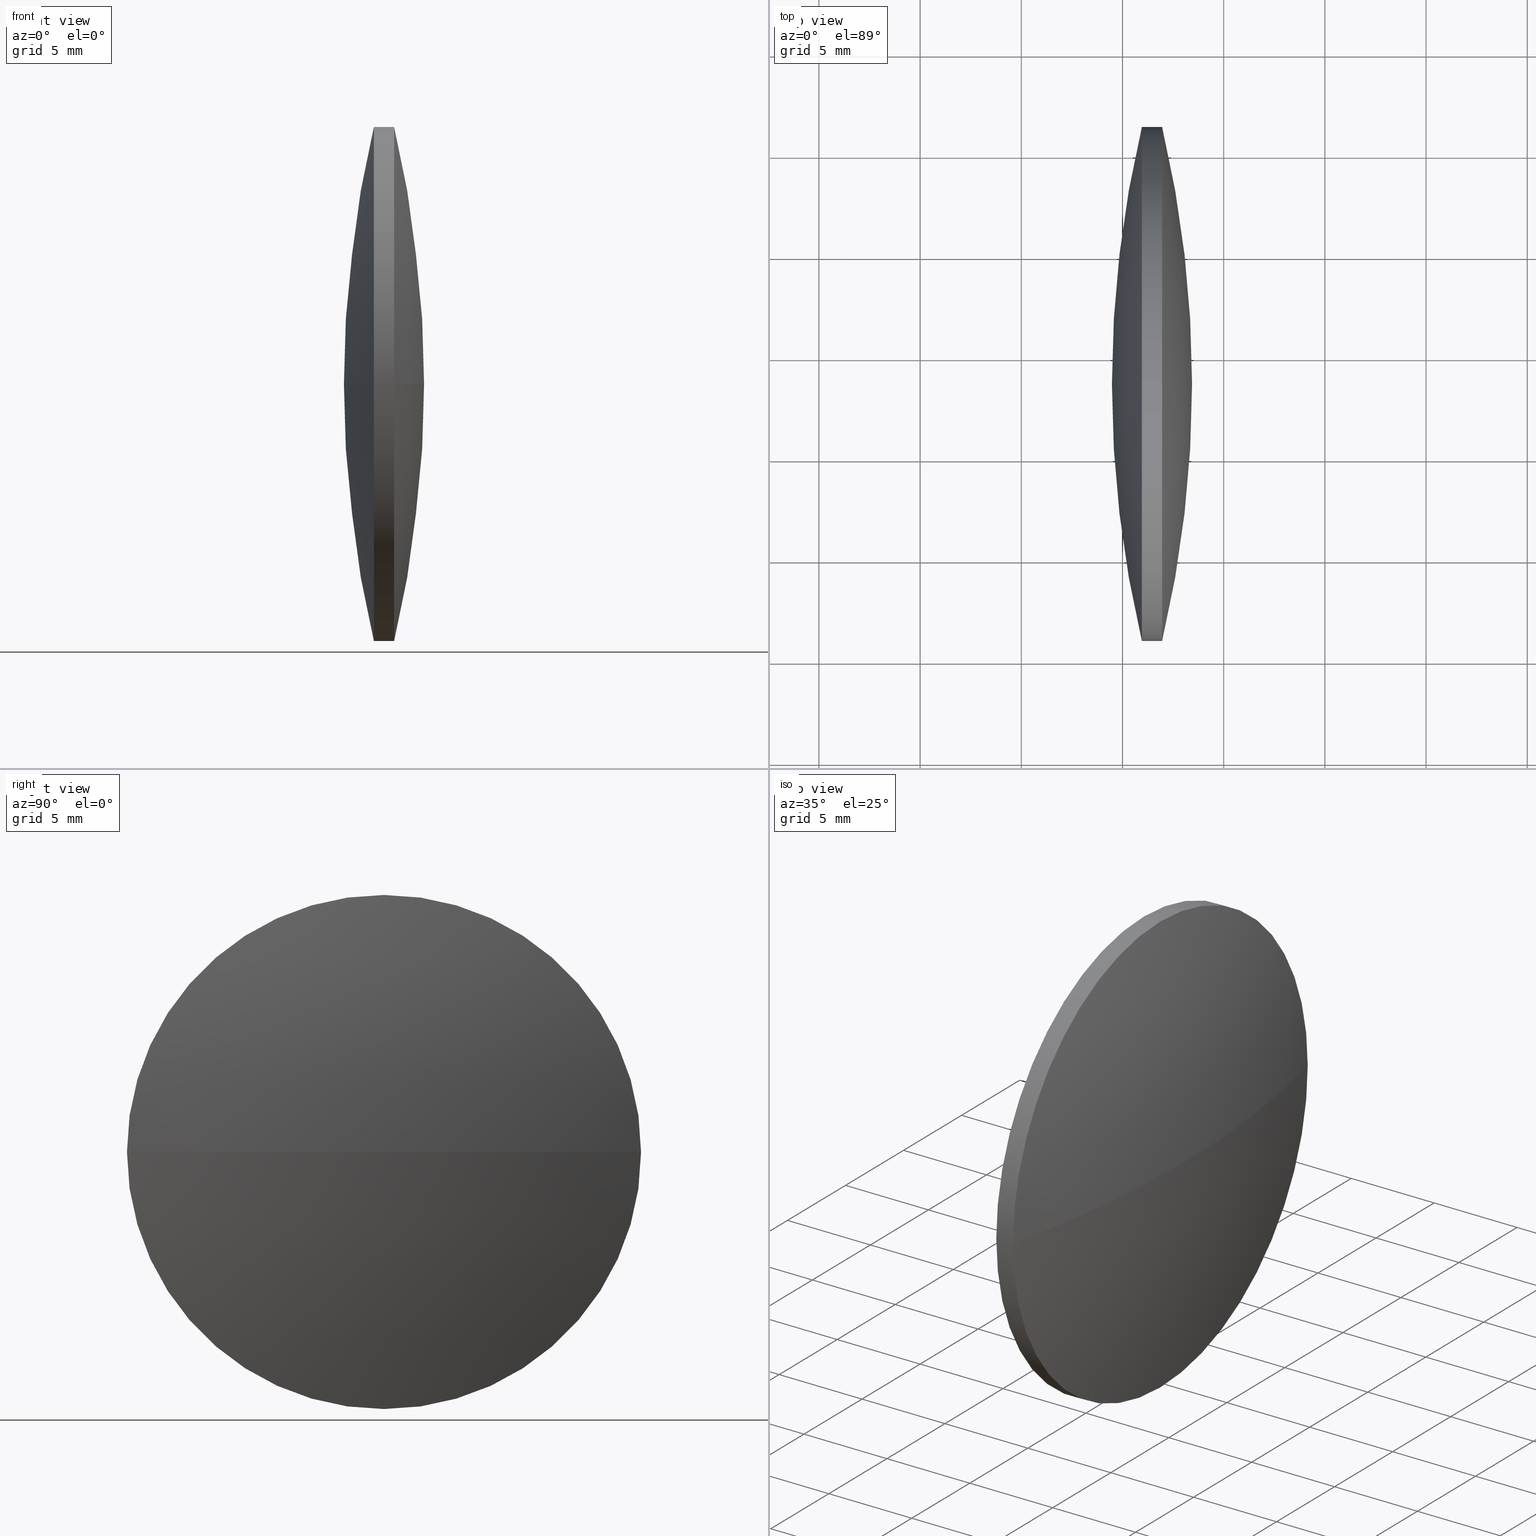
[diagram: canonical four-view strip — front | top / right | iso, engineering-drawing reading convention]
A machine part, canonical four-view strip (front | top / right | iso — engineering-drawing reading convention). The complete STEP part file that produces these views, byte-faithful:
ISO-10303-21;
HEADER;
FILE_DESCRIPTION (( 'STEP AP203' ),
    '1' );
FILE_NAME ('110099.STEP',
    '2019-07-08T06:36:03',
    ( '' ),
    ( '' ),
    'SwSTEP 2.0',
    'SolidWorks 2016',
    '' );
FILE_SCHEMA (( 'CONFIG_CONTROL_DESIGN' ));
ENDSEC;

DATA;
#1 = LOCAL_TIME ( 14, 36, 3.000000000000000000, #82 ) ;
#2 = DIRECTION ( 'NONE',  ( 1.000000000000000000, 0.0000000000000000000, 0.0000000000000000000 ) ) ;
#3 = DIRECTION ( 'NONE',  ( 0.0000000000000000000, 0.0000000000000000000, 1.000000000000000000 ) ) ;
#4 = ORIENTED_EDGE ( 'NONE', *, *, #168, .F. ) ;
#5 = SECURITY_CLASSIFICATION ( '', '', #234 ) ;
#6 = PERSON_AND_ORGANIZATION ( #338, #220 ) ;
#7 = DIRECTION ( 'NONE',  ( 0.0000000000000000000, 1.224646799147353200E-016, -1.000000000000000000 ) ) ;
#8 = AXIS2_PLACEMENT_3D ( 'NONE', #105, #268, #133 ) ;
#9 = DIRECTION ( 'NONE',  ( 0.0000000000000000000, 0.0000000000000000000, 1.000000000000000000 ) ) ;
#10 = CARTESIAN_POINT ( 'NONE',  ( 139.7092804807324700, 48.61611302318473100, 0.0000000000000000000 ) ) ;
#11 = CC_DESIGN_PERSON_AND_ORGANIZATION_ASSIGNMENT ( #253, #201, ( #158 ) ) ;
#12 = APPLICATION_CONTEXT ( 'configuration controlled 3d designs of mechanical parts and assemblies' ) ;
#13 =( NAMED_UNIT ( * ) SI_UNIT ( $, .STERADIAN. ) SOLID_ANGLE_UNIT ( ) );
#14 = CIRCLE ( 'NONE', #263, 55.23105299178421000 ) ;
#15 = PERSON_AND_ORGANIZATION ( #338, #220 ) ;
#16 = CARTESIAN_POINT ( 'NONE',  ( 79.30540135083715800, 48.61611302318478100, 12.69999999999999600 ) ) ;
#17 = AXIS2_PLACEMENT_3D ( 'NONE', #175, #64, #303 ) ;
#18 = AXIS2_PLACEMENT_3D ( 'NONE', #24, #50, #141 ) ;
#19 = CALENDAR_DATE ( 2019, 8, 7 ) ;
#20 = ORIENTED_EDGE ( 'NONE', *, *, #265, .F. ) ;
#21 = PERSON_AND_ORGANIZATION ( #338, #220 ) ;
#22 = CC_DESIGN_APPROVAL ( #58, ( #156 ) ) ;
#23 = AXIS2_PLACEMENT_3D ( 'NONE', #29, #28, #314 ) ;
#24 = CARTESIAN_POINT ( 'NONE',  ( 79.30540135083715800, 48.61611302318478100, 0.0000000000000000000 ) ) ;
#25 = CALENDAR_DATE ( 2019, 8, 7 ) ;
#26 = PERSON_AND_ORGANIZATION ( #338, #220 ) ;
#27 = AXIS2_PLACEMENT_3D ( 'NONE', #192, #32, #114 ) ;
#28 = DIRECTION ( 'NONE',  ( 0.0000000000000000000, 0.0000000000000000000, 1.000000000000000000 ) ) ;
#29 = CARTESIAN_POINT ( 'NONE',  ( 33.20710706859297500, 48.61611302318480200, 0.0000000000000000000 ) ) ;
#30 = EDGE_LOOP ( 'NONE', ( #129, #275, #4, #110 ) ) ;
#31 = DIRECTION ( 'NONE',  ( -0.0000000000000000000, 0.0000000000000000000, -1.000000000000000000 ) ) ;
#32 = DIRECTION ( 'NONE',  ( -1.000000000000000000, -0.0000000000000000000, -0.0000000000000000000 ) ) ;
#33 = CARTESIAN_POINT ( 'NONE',  ( 139.7092804807324700, 48.61611302318473100, 0.0000000000000000000 ) ) ;
#34 = ORIENTED_EDGE ( 'NONE', *, *, #168, .T. ) ;
#35 = APPROVAL ( #204, 'δָ��' ) ;
#36 = LOCAL_TIME ( 14, 36, 3.000000000000000000, #305 ) ;
#37 = AXIS2_PLACEMENT_3D ( 'NONE', #251, #89, #3 ) ;
#38 = APPLICATION_CONTEXT ( 'configuration controlled 3d designs of mechanical parts and assemblies' ) ;
#39 = UNCERTAINTY_MEASURE_WITH_UNIT (LENGTH_MEASURE( 1.000000000000000100E-005 ), #67, 'distance_accuracy_value', 'NONE');
#40 = CARTESIAN_POINT ( 'NONE',  ( 85.95819477466253000, 48.61611302318478100, 0.0000000000000000000 ) ) ;
#41 = CIRCLE ( 'NONE', #92, 55.23105299178420300 ) ;
#42 = FACE_OUTER_BOUND ( 'NONE', #315, .T. ) ;
#43 = APPLICATION_PROTOCOL_DEFINITION ( 'international standard', 'config_control_design', 1994, #230 ) ;
#44 = CC_DESIGN_PERSON_AND_ORGANIZATION_ASSIGNMENT ( #51, #256, ( #156 ) ) ;
#45 = ORIENTED_EDGE ( 'NONE', *, *, #298, .F. ) ;
#46 = ADVANCED_FACE ( 'NONE', ( #308 ), #244, .T. ) ;
#47 = PRODUCT ( '110099', '110099', '', ( #93 ) ) ;
#48 = VERTEX_POINT ( 'NONE', #247 ) ;
#49 = ORIENTED_EDGE ( 'NONE', *, *, #269, .F. ) ;
#50 = DIRECTION ( 'NONE',  ( -1.000000000000000000, -0.0000000000000000000, -0.0000000000000000000 ) ) ;
#51 = PERSON_AND_ORGANIZATION ( #338, #220 ) ;
#52 = CC_DESIGN_PERSON_AND_ORGANIZATION_ASSIGNMENT ( #21, #122, ( #291 ) ) ;
#53 = VERTEX_POINT ( 'NONE', #215 ) ;
#54 = CALENDAR_DATE ( 2019, 8, 7 ) ;
#55 = DATE_AND_TIME ( #135, #209 ) ;
#56 = CARTESIAN_POINT ( 'NONE',  ( 33.20710706859297500, 48.61611302318480200, 0.0000000000000000000 ) ) ;
#57 = DIRECTION ( 'NONE',  ( 0.0000000000000000000, 0.0000000000000000000, 1.000000000000000000 ) ) ;
#58 = APPROVAL ( #229, 'δָ��' ) ;
#59 = VERTEX_POINT ( 'NONE', #160 ) ;
#60 = DIRECTION ( 'NONE',  ( 0.0000000000000000000, 0.0000000000000000000, -1.000000000000000000 ) ) ;
#61 = APPROVAL_DATE_TIME ( #131, #307 ) ;
#62 = DIRECTION ( 'NONE',  ( -0.0000000000000000000, 0.0000000000000000000, 1.000000000000000000 ) ) ;
#63 = CARTESIAN_POINT ( 'NONE',  ( 84.47822748894826400, 48.61611302318473100, 0.0000000000000000000 ) ) ;
#64 = DIRECTION ( 'NONE',  ( -1.000000000000000000, -0.0000000000000000000, -0.0000000000000000000 ) ) ;
#65 = ORIENTED_EDGE ( 'NONE', *, *, #245, .T. ) ;
#66 = AXIS2_PLACEMENT_3D ( 'NONE', #296, #139, #57 ) ;
#67 =( LENGTH_UNIT ( ) NAMED_UNIT ( * ) SI_UNIT ( .MILLI., .METRE. ) );
#68 = EDGE_CURVE ( 'NONE', #295, #185, #208, .T. ) ;
#69 = CARTESIAN_POINT ( 'NONE',  ( 86.95819277466255000, 48.61611302318478100, -12.69999999999999600 ) ) ;
#70 = PERSON_AND_ORGANIZATION_ROLE ( 'classification_officer' ) ;
#71 = VERTEX_POINT ( 'NONE', #318 ) ;
#72 = APPROVAL_STATUS ( 'not_yet_approved' ) ;
#73 = AXIS2_PLACEMENT_3D ( 'NONE', #285, #146, #203 ) ;
#74 = AXIS2_PLACEMENT_3D ( 'NONE', #272, #190, #9 ) ;
#75 = DESIGN_CONTEXT ( 'detailed design', #38, 'design' ) ;
#76 = APPROVAL_DATE_TIME ( #121, #35 ) ;
#77 = LOCAL_TIME ( 14, 36, 3.000000000000000000, #195 ) ;
#78 = ADVANCED_FACE ( 'NONE', ( #310 ), #188, .T. ) ;
#79 = ORIENTED_EDGE ( 'NONE', *, *, #290, .F. ) ;
#80 = CC_DESIGN_APPROVAL ( #35, ( #291 ) ) ;
#81 = CIRCLE ( 'NONE', #17, 12.69999999999999600 ) ;
#82 = COORDINATED_UNIVERSAL_TIME_OFFSET ( 8, 0, .AHEAD. ) ;
#83 = CARTESIAN_POINT ( 'NONE',  ( 79.30540135083715800, 48.61611302318478100, -12.69999999999999600 ) ) ;
#84 = CIRCLE ( 'NONE', #138, 12.69999999999999600 ) ;
#85 = DIRECTION ( 'NONE',  ( -1.000000000000000000, -0.0000000000000000000, -0.0000000000000000000 ) ) ;
#86 = FACE_OUTER_BOUND ( 'NONE', #331, .T. ) ;
#87 = LOCAL_TIME ( 14, 36, 3.000000000000000000, #136 ) ;
#88 = CARTESIAN_POINT ( 'NONE',  ( 85.95819477466253000, 48.61611302318478100, 0.0000000000000000000 ) ) ;
#89 = DIRECTION ( 'NONE',  ( -1.000000000000000000, -0.0000000000000000000, -0.0000000000000000000 ) ) ;
#90 = CC_DESIGN_PERSON_AND_ORGANIZATION_ASSIGNMENT ( #311, #330, ( #291 ) ) ;
#91 = APPROVAL_ROLE ( '' ) ;
#92 = AXIS2_PLACEMENT_3D ( 'NONE', #10, #7, #117 ) ;
#93 = MECHANICAL_CONTEXT ( 'NONE', #12, 'mechanical' ) ;
#94 = APPROVAL_ROLE ( '' ) ;
#95 = ORIENTED_EDGE ( 'NONE', *, *, #290, .T. ) ;
#96 = LOCAL_TIME ( 14, 36, 3.000000000000000000, #239 ) ;
#97 = MECHANICAL_CONTEXT ( 'NONE', #230, 'mechanical' ) ;
#98 = CC_DESIGN_APPROVAL ( #167, ( #5 ) ) ;
#99 = CIRCLE ( 'NONE', #125, 55.23105299178385500 ) ;
#100 = DATE_AND_TIME ( #261, #276 ) ;
#101 = SPHERICAL_SURFACE ( 'NONE', #106, 55.23105299178421000 ) ;
#102 = VERTEX_POINT ( 'NONE', #221 ) ;
#103 = CC_DESIGN_DATE_AND_TIME_ASSIGNMENT ( #240, #148, ( #5 ) ) ;
#104 = PERSON_AND_ORGANIZATION ( #338, #220 ) ;
#105 = CARTESIAN_POINT ( 'NONE',  ( 139.7092804807324700, 48.61611302318473100, 0.0000000000000000000 ) ) ;
#106 = AXIS2_PLACEMENT_3D ( 'NONE', #33, #31, #223 ) ;
#107 = CARTESIAN_POINT ( 'NONE',  ( 33.20710706859297500, 48.61611302318480200, 0.0000000000000000000 ) ) ;
#108 = FACE_OUTER_BOUND ( 'NONE', #341, .T. ) ;
#109 = CIRCLE ( 'NONE', #37, 12.69999999999999600 ) ;
#110 = ORIENTED_EDGE ( 'NONE', *, *, #266, .F. ) ;
#111 = CARTESIAN_POINT ( 'NONE',  ( 33.20710706859297500, 48.61611302318480200, 0.0000000000000000000 ) ) ;
#112 = CALENDAR_DATE ( 2019, 8, 7 ) ;
#113 = CC_DESIGN_DATE_AND_TIME_ASSIGNMENT ( #55, #172, ( #293 ) ) ;
#114 = DIRECTION ( 'NONE',  ( 0.0000000000000000000, 0.0000000000000000000, 1.000000000000000000 ) ) ;
#115 = ORIENTED_EDGE ( 'NONE', *, *, #211, .F. ) ;
#116 = DATE_AND_TIME ( #327, #87 ) ;
#117 = DIRECTION ( 'NONE',  ( 0.0000000000000000000, 1.000000000000000000, 1.224646799147353500E-016 ) ) ;
#118 = PERSON_AND_ORGANIZATION_ROLE ( 'creator' ) ;
#119 = ORIENTED_EDGE ( 'NONE', *, *, #219, .F. ) ;
#120 = DIRECTION ( 'NONE',  ( -1.000000000000000000, -0.0000000000000000000, -0.0000000000000000000 ) ) ;
#121 = DATE_AND_TIME ( #112, #170 ) ;
#122 = PERSON_AND_ORGANIZATION_ROLE ( 'creator' ) ;
#123 = PERSON_AND_ORGANIZATION_ROLE ( 'design_owner' ) ;
#124 = ORIENTED_EDGE ( 'NONE', *, *, #189, .F. ) ;
#125 = AXIS2_PLACEMENT_3D ( 'NONE', #111, #169, #227 ) ;
#126 = ORIENTED_EDGE ( 'NONE', *, *, #269, .T. ) ;
#127 = CALENDAR_DATE ( 2019, 8, 7 ) ;
#128 = PERSON_AND_ORGANIZATION ( #338, #220 ) ;
#129 = ORIENTED_EDGE ( 'NONE', *, *, #186, .F. ) ;
#130 = CC_DESIGN_PERSON_AND_ORGANIZATION_ASSIGNMENT ( #194, #333, ( #158 ) ) ;
#131 = DATE_AND_TIME ( #54, #206 ) ;
#132 = ADVANCED_FACE ( 'NONE', ( #42 ), #340, .T. ) ;
#133 = DIRECTION ( 'NONE',  ( 0.0000000000000000000, 1.000000000000000000, 0.0000000000000000000 ) ) ;
#134 = CLOSED_SHELL ( 'NONE', ( #183, #78, #241, #46, #132, #243 ) ) ;
#135 = CALENDAR_DATE ( 2019, 8, 7 ) ;
#136 = COORDINATED_UNIVERSAL_TIME_OFFSET ( 8, 0, .AHEAD. ) ;
#137 = CARTESIAN_POINT ( 'NONE',  ( 139.7092804807324700, 48.61611302318473100, 0.0000000000000000000 ) ) ;
#138 = AXIS2_PLACEMENT_3D ( 'NONE', #88, #277, #274 ) ;
#139 = DIRECTION ( 'NONE',  ( -1.000000000000000000, -0.0000000000000000000, -0.0000000000000000000 ) ) ;
#140 = ORIENTED_EDGE ( 'NONE', *, *, #328, .F. ) ;
#141 = DIRECTION ( 'NONE',  ( 0.0000000000000000000, 0.0000000000000000000, 1.000000000000000000 ) ) ;
#142 = CC_DESIGN_APPROVAL ( #184, ( #293 ) ) ;
#143 = APPROVAL_ROLE ( '' ) ;
#144 = AXIS2_PLACEMENT_3D ( 'NONE', #56, #60, #225 ) ;
#145 = DATE_AND_TIME ( #25, #96 ) ;
#146 = DIRECTION ( 'NONE',  ( 0.0000000000000000000, 0.0000000000000000000, 1.000000000000000000 ) ) ;
#147 = APPROVAL_PERSON_ORGANIZATION ( #128, #35, #143 ) ;
#148 = DATE_TIME_ROLE ( 'classification_date' ) ;
#149 = APPLICATION_PROTOCOL_DEFINITION ( 'international standard', 'config_control_design', 1994, #12 ) ;
#150 = CIRCLE ( 'NONE', #144, 55.23105299178385500 ) ;
#151 = PERSON_AND_ORGANIZATION_ROLE ( 'classification_officer' ) ;
#152 = APPROVAL_DATE_TIME ( #164, #167 ) ;
#153 = APPROVAL_ROLE ( '' ) ;
#154 = CC_DESIGN_PERSON_AND_ORGANIZATION_ASSIGNMENT ( #104, #151, ( #5 ) ) ;
#155 = DESIGN_CONTEXT ( 'detailed design', #198, 'design' ) ;
#156 = PRODUCT_DEFINITION ( 'δ֪', '', #291, #155 ) ;
#157 = EDGE_LOOP ( 'NONE', ( #252, #264, #126, #287 ) ) ;
#158 = PRODUCT_DEFINITION_FORMATION_WITH_SPECIFIED_SOURCE ( '�κ�', '', #47, .NOT_KNOWN. ) ;
#159 = MANIFOLD_SOLID_BREP ( '��ת1', #134 ) ;
#160 = CARTESIAN_POINT ( 'NONE',  ( 85.95819477466253000, 48.61611302318478100, 12.69999999999999600 ) ) ;
#161 = CYLINDRICAL_SURFACE ( 'NONE', #181, 12.69999999999999600 ) ;
#162 = CARTESIAN_POINT ( 'NONE',  ( 85.95819477466253000, 35.91611302318475700, -1.555301434917134100E-015 ) ) ;
#163 = ORIENTED_EDGE ( 'NONE', *, *, #328, .T. ) ;
#164 = DATE_AND_TIME ( #322, #1 ) ;
#165 = DATE_AND_TIME ( #342, #77 ) ;
#166 = CARTESIAN_POINT ( 'NONE',  ( 86.95819277466255000, 48.61611302318478100, 12.69999999999999600 ) ) ;
#167 = APPROVAL ( #335, 'δָ��' ) ;
#168 = EDGE_CURVE ( 'NONE', #321, #53, #238, .T. ) ;
#169 = DIRECTION ( 'NONE',  ( 0.0000000000000000000, -1.224646799147353200E-016, 1.000000000000000000 ) ) ;
#170 = LOCAL_TIME ( 14, 36, 3.000000000000000000, #210 ) ;
#171 = DIRECTION ( 'NONE',  ( 0.0000000000000000000, 0.0000000000000000000, 1.000000000000000000 ) ) ;
#172 = DATE_TIME_ROLE ( 'creation_date' ) ;
#173 = SECURITY_CLASSIFICATION_LEVEL ( 'unclassified' ) ;
#174 = ORIENTED_EDGE ( 'NONE', *, *, #286, .F. ) ;
#175 = CARTESIAN_POINT ( 'NONE',  ( 85.95819477466253000, 48.61611302318478100, 0.0000000000000000000 ) ) ;
#176 = CC_DESIGN_SECURITY_CLASSIFICATION ( #5, ( #291 ) ) ;
#177 = APPROVAL_ROLE ( '' ) ;
#178 = ORIENTED_EDGE ( 'NONE', *, *, #266, .T. ) ;
#179 = PERSON_AND_ORGANIZATION ( #338, #220 ) ;
#180 = CC_DESIGN_APPROVAL ( #326, ( #207 ) ) ;
#181 = AXIS2_PLACEMENT_3D ( 'NONE', #254, #85, #273 ) ;
#182 = ORIENTED_EDGE ( 'NONE', *, *, #286, .T. ) ;
#183 = ADVANCED_FACE ( 'NONE', ( #302 ), #199, .T. ) ;
#184 = APPROVAL ( #72, 'δָ��' ) ;
#185 = VERTEX_POINT ( 'NONE', #196 ) ;
#186 = EDGE_CURVE ( 'NONE', #102, #71, #150, .T. ) ;
#187 = DIRECTION ( 'NONE',  ( 0.0000000000000000000, 0.0000000000000000000, 1.000000000000000000 ) ) ;
#188 = SPHERICAL_SURFACE ( 'NONE', #226, 55.23105299178385500 ) ;
#189 = EDGE_CURVE ( 'NONE', #48, #292, #14, .T. ) ;
#190 = DIRECTION ( 'NONE',  ( -1.000000000000000000, -0.0000000000000000000, -0.0000000000000000000 ) ) ;
#191 = CC_DESIGN_PERSON_AND_ORGANIZATION_ASSIGNMENT ( #6, #334, ( #47 ) ) ;
#192 = CARTESIAN_POINT ( 'NONE',  ( 86.95819277466255000, 48.61611302318478100, 0.0000000000000000000 ) ) ;
#193 = ORIENTED_EDGE ( 'NONE', *, *, #68, .F. ) ;
#194 = PERSON_AND_ORGANIZATION ( #338, #220 ) ;
#195 = COORDINATED_UNIVERSAL_TIME_OFFSET ( 8, 0, .AHEAD. ) ;
#196 = CARTESIAN_POINT ( 'NONE',  ( 85.95819477466253000, 48.61611302318478100, -12.69999999999999600 ) ) ;
#197 = CC_DESIGN_SECURITY_CLASSIFICATION ( #207, ( #158 ) ) ;
#198 = APPLICATION_CONTEXT ( 'configuration controlled 3d designs of mechanical parts and assemblies' ) ;
#199 = CYLINDRICAL_SURFACE ( 'NONE', #18, 12.69999999999999600 ) ;
#200 = VERTEX_POINT ( 'NONE', #162 ) ;
#201 = PERSON_AND_ORGANIZATION_ROLE ( 'design_supplier' ) ;
#202 = PERSON_AND_ORGANIZATION ( #338, #220 ) ;
#203 = DIRECTION ( 'NONE',  ( 1.000000000000000000, 0.0000000000000000000, 0.0000000000000000000 ) ) ;
#204 = APPROVAL_STATUS ( 'not_yet_approved' ) ;
#205 = ORIENTED_EDGE ( 'NONE', *, *, #186, .T. ) ;
#206 = LOCAL_TIME ( 14, 36, 3.000000000000000000, #316 ) ;
#207 = SECURITY_CLASSIFICATION ( '', '', #173 ) ;
#208 = LINE ( 'NONE', #83, #231 ) ;
#209 = LOCAL_TIME ( 14, 36, 3.000000000000000000, #332 ) ;
#210 = COORDINATED_UNIVERSAL_TIME_OFFSET ( 8, 0, .AHEAD. ) ;
#211 = EDGE_CURVE ( 'NONE', #200, #59, #248, .T. ) ;
#212 = CC_DESIGN_PERSON_AND_ORGANIZATION_ASSIGNMENT ( #179, #70, ( #207 ) ) ;
#213 = ORIENTED_EDGE ( 'NONE', *, *, #219, .T. ) ;
#214 = PERSON_AND_ORGANIZATION ( #338, #220 ) ;
#215 = CARTESIAN_POINT ( 'NONE',  ( 86.95819277466255000, 61.31611302318478400, 1.555301434917136300E-015 ) ) ;
#216 = CIRCLE ( 'NONE', #66, 12.69999999999999600 ) ;
#217 = PRODUCT_RELATED_PRODUCT_CATEGORY ( 'detail', '', ( #289 ) ) ;
#218 = COORDINATED_UNIVERSAL_TIME_OFFSET ( 8, 0, .AHEAD. ) ;
#219 = EDGE_CURVE ( 'NONE', #53, #295, #109, .T. ) ;
#220 = ORGANIZATION ( 'δָ��', 'δָ��', '' ) ;
#221 = CARTESIAN_POINT ( 'NONE',  ( 88.43816006037683100, 48.61611302318480200, 0.0000000000000000000 ) ) ;
#222 = CARTESIAN_POINT ( 'NONE',  ( 85.95819477466253000, 48.61611302318478100, 0.0000000000000000000 ) ) ;
#223 = DIRECTION ( 'NONE',  ( 0.0000000000000000000, 1.000000000000000000, 0.0000000000000000000 ) ) ;
#224 = DIRECTION ( 'NONE',  ( -1.000000000000000000, -0.0000000000000000000, -0.0000000000000000000 ) ) ;
#225 = DIRECTION ( 'NONE',  ( -1.000000000000000000, 0.0000000000000000000, 0.0000000000000000000 ) ) ;
#226 = AXIS2_PLACEMENT_3D ( 'NONE', #107, #187, #320 ) ;
#227 = DIRECTION ( 'NONE',  ( 0.0000000000000000000, -1.000000000000000000, -1.224646799147353000E-016 ) ) ;
#228 = APPROVAL_STATUS ( 'not_yet_approved' ) ;
#229 = APPROVAL_STATUS ( 'not_yet_approved' ) ;
#230 = APPLICATION_CONTEXT ( 'configuration controlled 3d designs of mechanical parts and assemblies' ) ;
#231 = VECTOR ( 'NONE', #345, 1000.000000000000000 ) ;
#232 = DIRECTION ( 'NONE',  ( -1.000000000000000000, -0.0000000000000000000, -0.0000000000000000000 ) ) ;
#233 = APPROVAL_PERSON_ORGANIZATION ( #15, #167, #177 ) ;
#234 = SECURITY_CLASSIFICATION_LEVEL ( 'unclassified' ) ;
#235 = PRODUCT_RELATED_PRODUCT_CATEGORY ( 'detail', '', ( #47 ) ) ;
#236 = COORDINATED_UNIVERSAL_TIME_OFFSET ( 8, 0, .AHEAD. ) ;
#237 = CIRCLE ( 'NONE', #339, 12.69999999999999600 ) ;
#238 = CIRCLE ( 'NONE', #74, 12.69999999999999600 ) ;
#239 = COORDINATED_UNIVERSAL_TIME_OFFSET ( 8, 0, .AHEAD. ) ;
#240 = DATE_AND_TIME ( #19, #36 ) ;
#241 = ADVANCED_FACE ( 'NONE', ( #86 ), #101, .T. ) ;
#242 = CC_DESIGN_PERSON_AND_ORGANIZATION_ASSIGNMENT ( #312, #123, ( #289 ) ) ;
#243 = ADVANCED_FACE ( 'NONE', ( #108 ), #161, .T. ) ;
#244 = SPHERICAL_SURFACE ( 'NONE', #8, 55.23105299178421000 ) ;
#245 = EDGE_CURVE ( 'NONE', #200, #292, #41, .T. ) ;
#246 = APPROVAL_DATE_TIME ( #282, #184 ) ;
#247 = CARTESIAN_POINT ( 'NONE',  ( 85.95819477466253000, 61.31611302318474800, 0.0000000000000000000 ) ) ;
#248 = CIRCLE ( 'NONE', #344, 12.69999999999999600 ) ;
#249 = APPROVAL_PERSON_ORGANIZATION ( #304, #326, #153 ) ;
#250 = APPROVAL_DATE_TIME ( #165, #58 ) ;
#251 = CARTESIAN_POINT ( 'NONE',  ( 86.95819277466255000, 48.61611302318478100, 0.0000000000000000000 ) ) ;
#252 = ORIENTED_EDGE ( 'NONE', *, *, #245, .F. ) ;
#253 = PERSON_AND_ORGANIZATION ( #338, #220 ) ;
#254 = CARTESIAN_POINT ( 'NONE',  ( 79.30540135083715800, 48.61611302318478100, 0.0000000000000000000 ) ) ;
#255 = DIRECTION ( 'NONE',  ( 1.000000000000000000, 0.0000000000000000000, 0.0000000000000000000 ) ) ;
#256 = PERSON_AND_ORGANIZATION_ROLE ( 'creator' ) ;
#257 = ORIENTED_EDGE ( 'NONE', *, *, #298, .T. ) ;
#258 = PERSON_AND_ORGANIZATION ( #338, #220 ) ;
#259 = APPLICATION_PROTOCOL_DEFINITION ( 'international standard', 'config_control_design', 1994, #198 ) ;
#260 = DIRECTION ( 'NONE',  ( 0.0000000000000000000, 0.0000000000000000000, 1.000000000000000000 ) ) ;
#261 = CALENDAR_DATE ( 2019, 8, 7 ) ;
#262 = CC_DESIGN_PERSON_AND_ORGANIZATION_ASSIGNMENT ( #26, #118, ( #293 ) ) ;
#263 = AXIS2_PLACEMENT_3D ( 'NONE', #137, #62, #2 ) ;
#264 = ORIENTED_EDGE ( 'NONE', *, *, #211, .T. ) ;
#265 = EDGE_CURVE ( 'NONE', #102, #53, #99, .T. ) ;
#266 = EDGE_CURVE ( 'NONE', #71, #321, #216, .T. ) ;
#267 = APPROVAL_PERSON_ORGANIZATION ( #214, #58, #94 ) ;
#268 = DIRECTION ( 'NONE',  ( -0.0000000000000000000, 0.0000000000000000000, -1.000000000000000000 ) ) ;
#269 = EDGE_CURVE ( 'NONE', #59, #48, #84, .T. ) ;
#270 = EDGE_LOOP ( 'NONE', ( #213, #324, #79, #49, #140, #34 ) ) ;
#271 = APPROVAL_PERSON_ORGANIZATION ( #258, #307, #91 ) ;
#272 = CARTESIAN_POINT ( 'NONE',  ( 86.95819277466255000, 48.61611302318478100, 0.0000000000000000000 ) ) ;
#273 = DIRECTION ( 'NONE',  ( 0.0000000000000000000, 0.0000000000000000000, 1.000000000000000000 ) ) ;
#274 = DIRECTION ( 'NONE',  ( 0.0000000000000000000, 0.0000000000000000000, 1.000000000000000000 ) ) ;
#275 = ORIENTED_EDGE ( 'NONE', *, *, #265, .T. ) ;
#276 = LOCAL_TIME ( 14, 36, 3.000000000000000000, #218 ) ;
#277 = DIRECTION ( 'NONE',  ( -1.000000000000000000, -0.0000000000000000000, -0.0000000000000000000 ) ) ;
#278 = PRODUCT_DEFINITION_SHAPE ( 'NONE', 'NONE',  #156 ) ;
#279 = CC_DESIGN_DATE_AND_TIME_ASSIGNMENT ( #100, #299, ( #207 ) ) ;
#280 = APPROVAL_STATUS ( 'not_yet_approved' ) ;
#281 = CARTESIAN_POINT ( 'NONE',  ( 0.0000000000000000000, 0.0000000000000000000, 0.0000000000000000000 ) ) ;
#282 = DATE_AND_TIME ( #127, #309 ) ;
#283 = SHAPE_DEFINITION_REPRESENTATION ( #337, #319 ) ;
#284 = APPLICATION_PROTOCOL_DEFINITION ( 'international standard', 'config_control_design', 1994, #38 ) ;
#285 = CARTESIAN_POINT ( 'NONE',  ( 0.0000000000000000000, 0.0000000000000000000, 0.0000000000000000000 ) ) ;
#286 = EDGE_CURVE ( 'NONE', #295, #71, #301, .T. ) ;
#287 = ORIENTED_EDGE ( 'NONE', *, *, #189, .T. ) ;
#288 = APPROVAL_DATE_TIME ( #145, #326 ) ;
#289 = PRODUCT ( '110099', '110099', '', ( #97 ) ) ;
#290 = EDGE_CURVE ( 'NONE', #48, #185, #81, .T. ) ;
#291 = PRODUCT_DEFINITION_FORMATION_WITH_SPECIFIED_SOURCE ( '�κ�', '', #289, .NOT_KNOWN. ) ;
#292 = VERTEX_POINT ( 'NONE', #63 ) ;
#293 = PRODUCT_DEFINITION ( 'δ֪', '', #158, #75 ) ;
#294 = LINE ( 'NONE', #16, #323 ) ;
#295 = VERTEX_POINT ( 'NONE', #69 ) ;
#296 = CARTESIAN_POINT ( 'NONE',  ( 86.95819277466255000, 48.61611302318478100, 0.0000000000000000000 ) ) ;
#297 = CC_DESIGN_APPROVAL ( #307, ( #158 ) ) ;
#298 = EDGE_CURVE ( 'NONE', #185, #200, #237, .T. ) ;
#299 = DATE_TIME_ROLE ( 'classification_date' ) ;
#300 =( NAMED_UNIT ( * ) PLANE_ANGLE_UNIT ( ) SI_UNIT ( $, .RADIAN. ) );
#301 = CIRCLE ( 'NONE', #27, 12.69999999999999600 ) ;
#302 = FACE_OUTER_BOUND ( 'NONE', #270, .T. ) ;
#303 = DIRECTION ( 'NONE',  ( 0.0000000000000000000, 0.0000000000000000000, 1.000000000000000000 ) ) ;
#304 = PERSON_AND_ORGANIZATION ( #338, #220 ) ;
#305 = COORDINATED_UNIVERSAL_TIME_OFFSET ( 8, 0, .AHEAD. ) ;
#306 = DATE_TIME_ROLE ( 'creation_date' ) ;
#307 = APPROVAL ( #228, 'δָ��' ) ;
#308 = FACE_OUTER_BOUND ( 'NONE', #157, .T. ) ;
#309 = LOCAL_TIME ( 14, 36, 3.000000000000000000, #236 ) ;
#310 = FACE_OUTER_BOUND ( 'NONE', #30, .T. ) ;
#311 = PERSON_AND_ORGANIZATION ( #338, #220 ) ;
#312 = PERSON_AND_ORGANIZATION ( #338, #220 ) ;
#313 = AXIS2_PLACEMENT_3D ( 'NONE', #281, #171, #255 ) ;
#314 = DIRECTION ( 'NONE',  ( 0.0000000000000000000, -1.000000000000000000, 0.0000000000000000000 ) ) ;
#315 = EDGE_LOOP ( 'NONE', ( #20, #205, #174, #119 ) ) ;
#316 = COORDINATED_UNIVERSAL_TIME_OFFSET ( 8, 0, .AHEAD. ) ;
#317 = APPROVAL_PERSON_ORGANIZATION ( #202, #184, #329 ) ;
#318 = CARTESIAN_POINT ( 'NONE',  ( 86.95819277466255000, 35.91611302318479900, 0.0000000000000000000 ) ) ;
#319 = ADVANCED_BREP_SHAPE_REPRESENTATION ( '110099', ( #159, #313 ), #343 ) ;
#320 = DIRECTION ( 'NONE',  ( 0.0000000000000000000, -1.000000000000000000, 0.0000000000000000000 ) ) ;
#321 = VERTEX_POINT ( 'NONE', #166 ) ;
#322 = CALENDAR_DATE ( 2019, 8, 7 ) ;
#323 = VECTOR ( 'NONE', #232, 1000.000000000000000 ) ;
#324 = ORIENTED_EDGE ( 'NONE', *, *, #68, .T. ) ;
#325 = DIRECTION ( 'NONE',  ( 0.0000000000000000000, 0.0000000000000000000, 1.000000000000000000 ) ) ;
#326 = APPROVAL ( #280, 'δָ��' ) ;
#327 = CALENDAR_DATE ( 2019, 8, 7 ) ;
#328 = EDGE_CURVE ( 'NONE', #321, #59, #294, .T. ) ;
#329 = APPROVAL_ROLE ( '' ) ;
#330 = PERSON_AND_ORGANIZATION_ROLE ( 'design_supplier' ) ;
#331 = EDGE_LOOP ( 'NONE', ( #95, #257, #65, #124 ) ) ;
#332 = COORDINATED_UNIVERSAL_TIME_OFFSET ( 8, 0, .AHEAD. ) ;
#333 = PERSON_AND_ORGANIZATION_ROLE ( 'creator' ) ;
#334 = PERSON_AND_ORGANIZATION_ROLE ( 'design_owner' ) ;
#335 = APPROVAL_STATUS ( 'not_yet_approved' ) ;
#336 = CC_DESIGN_DATE_AND_TIME_ASSIGNMENT ( #116, #306, ( #156 ) ) ;
#337 = PRODUCT_DEFINITION_SHAPE ( 'NONE', 'NONE',  #293 ) ;
#338 = PERSON ( 'δָ��', 'δָ��', 'δָ��', ('δָ��'), ('δָ��'), ('δָ��') ) ;
#339 = AXIS2_PLACEMENT_3D ( 'NONE', #40, #120, #260 ) ;
#340 = SPHERICAL_SURFACE ( 'NONE', #23, 55.23105299178385500 ) ;
#341 = EDGE_LOOP ( 'NONE', ( #193, #182, #178, #163, #115, #45 ) ) ;
#342 = CALENDAR_DATE ( 2019, 8, 7 ) ;
#343 =( GEOMETRIC_REPRESENTATION_CONTEXT ( 3 ) GLOBAL_UNCERTAINTY_ASSIGNED_CONTEXT ( ( #39 ) ) GLOBAL_UNIT_ASSIGNED_CONTEXT ( ( #67, #300, #13 ) ) REPRESENTATION_CONTEXT ( 'NONE', 'WORKASPACE' ) );
#344 = AXIS2_PLACEMENT_3D ( 'NONE', #222, #224, #325 ) ;
#345 = DIRECTION ( 'NONE',  ( -1.000000000000000000, -0.0000000000000000000, -0.0000000000000000000 ) ) ;
ENDSEC;
END-ISO-10303-21;
